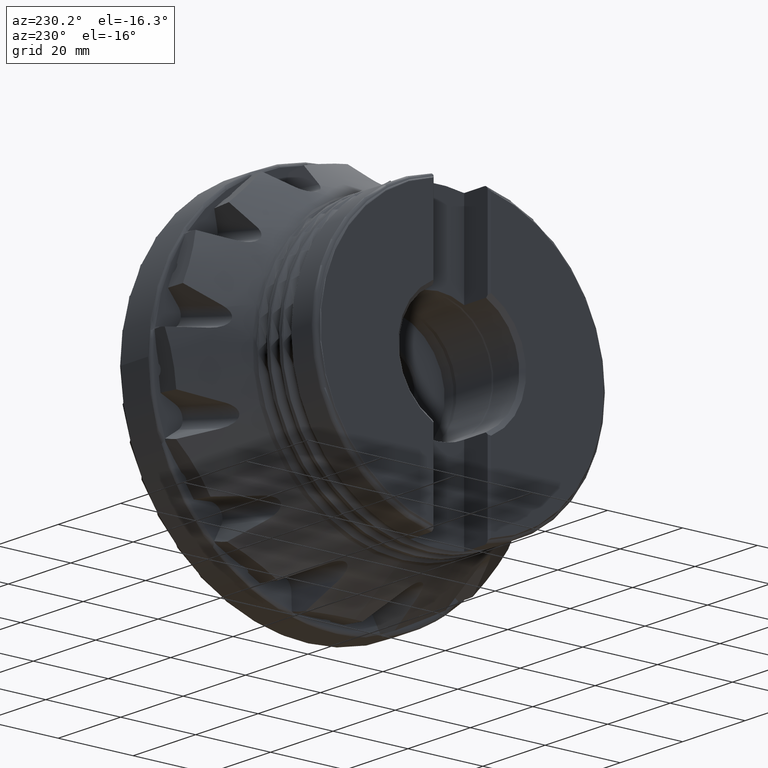
[diagram: clean part render]
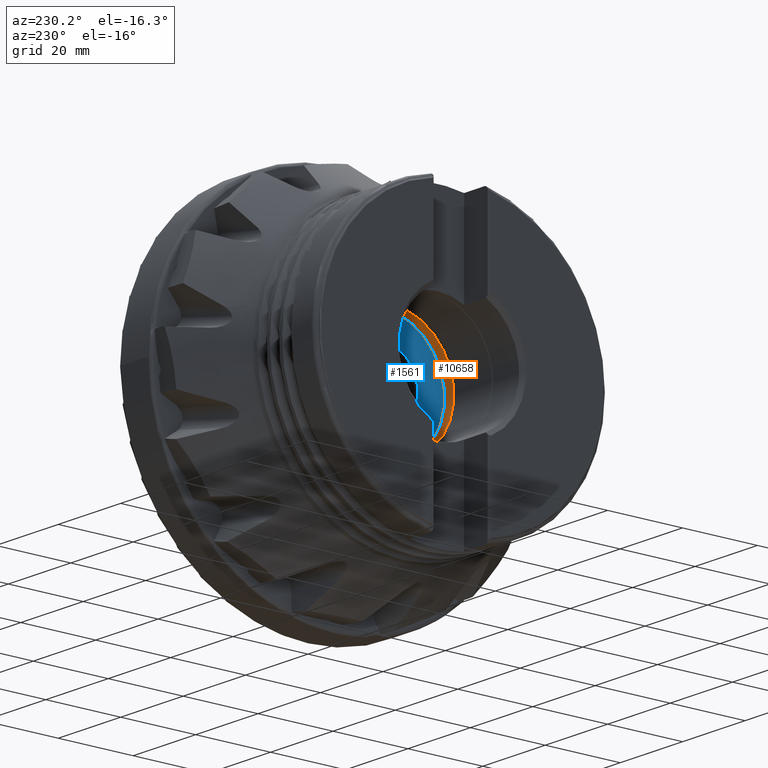
[diagram: same view with the hole feature highlighted: cylindrical wall and planar end face, labeled with their STEP entity ids]
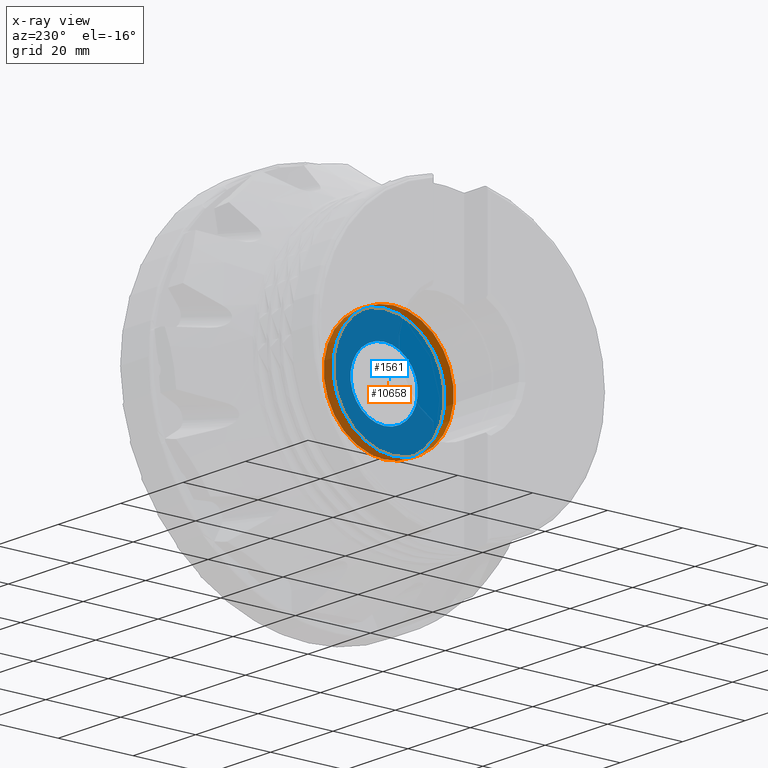
[diagram: x-ray of the same camera — body ghosted, the hole faces saturated]
A machine part, auxiliary view. The highlighted faces form one hole feature of diameter 32.3 mm: the cylindrical wall (entity #10658, orange) and its adjacent planar end face (entity #1561, blue) — they share a circular edge in the B-rep.
The next image is the same camera in x-ray (body ghosted, the hole faces saturated) — the bore reads through the body.
Wall:
#68 = CIRCLE ( 'NONE', #71, 16.14999999999999500 ) ;
#71 = AXIS2_PLACEMENT_3D ( 'NONE', #3104, #10061, #4086 ) ;
#942 = DIRECTION ( 'NONE',  ( 0.0000000000000000000, 0.0000000000000000000, -1.000000000000000000 ) ) ;
#1599 = CARTESIAN_POINT ( 'NONE',  ( -24.39999999999999900, 0.0000000000000000000, -16.14999999999999500 ) ) ;
#2506 = AXIS2_PLACEMENT_3D ( 'NONE', #8471, #2516, #9477 ) ;
#2516 = DIRECTION ( 'NONE',  ( 1.000000000000000000, -0.0000000000000000000, -0.0000000000000000000 ) ) ;
#3104 = CARTESIAN_POINT ( 'NONE',  ( -24.39999999999999900, 0.0000000000000000000, 0.0000000000000000000 ) ) ;
#3556 = CARTESIAN_POINT ( 'NONE',  ( -27.33269454164238600, 0.0000000000000000000, -16.14999999999999500 ) ) ;
#3692 = ORIENTED_EDGE ( 'NONE', *, *, #12745, .T. ) ;
#3784 = FACE_OUTER_BOUND ( 'NONE', #11153, .T. ) ;
#4086 = DIRECTION ( 'NONE',  ( 0.0000000000000000000, 0.0000000000000000000, -1.000000000000000000 ) ) ;
#4899 = CIRCLE ( 'NONE', #2506, 16.14999999999999500 ) ;
#6040 = AXIS2_PLACEMENT_3D ( 'NONE', #7903, #9886, #942 ) ;
#6421 = VERTEX_POINT ( 'NONE', #3556 ) ;
#7903 = CARTESIAN_POINT ( 'NONE',  ( 0.0000000000000000000, 0.0000000000000000000, 0.0000000000000000000 ) ) ;
#8254 = EDGE_LOOP ( 'NONE', ( #3692 ) ) ;
#8471 = CARTESIAN_POINT ( 'NONE',  ( -27.33269454164238600, 0.0000000000000000000, 0.0000000000000000000 ) ) ;
#8483 = VERTEX_POINT ( 'NONE', #1599 ) ;
#8792 = CYLINDRICAL_SURFACE ( 'NONE', #6040, 16.14999999999999500 ) ;
#9107 = FACE_OUTER_BOUND ( 'NONE', #8254, .T. ) ;
#9477 = DIRECTION ( 'NONE',  ( 0.0000000000000000000, 0.0000000000000000000, -1.000000000000000000 ) ) ;
#9886 = DIRECTION ( 'NONE',  ( 1.000000000000000000, -0.0000000000000000000, -0.0000000000000000000 ) ) ;
#10061 = DIRECTION ( 'NONE',  ( 1.000000000000000000, -0.0000000000000000000, -0.0000000000000000000 ) ) ;
#10658 = ADVANCED_FACE ( 'NONE', ( #3784, #9107 ), #8792, .F. ) ;
#10940 = EDGE_CURVE ( 'NONE', #6421, #6421, #4899, .T. ) ;
#11153 = EDGE_LOOP ( 'NONE', ( #12390 ) ) ;
#12390 = ORIENTED_EDGE ( 'NONE', *, *, #10940, .F. ) ;
#12745 = EDGE_CURVE ( 'NONE', #8483, #8483, #68, .T. ) ;
End face:
#68 = CIRCLE ( 'NONE', #71, 16.14999999999999500 ) ;
#71 = AXIS2_PLACEMENT_3D ( 'NONE', #3104, #10061, #4086 ) ;
#1452 = CIRCLE ( 'NONE', #3332, 8.999999999999980500 ) ;
#1561 = ADVANCED_FACE ( 'NONE', ( #9877, #8962 ), #10324, .F. ) ;
#1599 = CARTESIAN_POINT ( 'NONE',  ( -24.39999999999999900, 0.0000000000000000000, -16.14999999999999500 ) ) ;
#2236 = EDGE_CURVE ( 'NONE', #9862, #9862, #1452, .T. ) ;
#2375 = CARTESIAN_POINT ( 'NONE',  ( -24.39999999999999900, 8.499999999999996400, 0.0000000000000000000 ) ) ;
#3104 = CARTESIAN_POINT ( 'NONE',  ( -24.39999999999999900, 0.0000000000000000000, 0.0000000000000000000 ) ) ;
#3332 = AXIS2_PLACEMENT_3D ( 'NONE', #9950, #3959, #10942 ) ;
#3959 = DIRECTION ( 'NONE',  ( 1.000000000000000000, -0.0000000000000000000, -0.0000000000000000000 ) ) ;
#4086 = DIRECTION ( 'NONE',  ( 0.0000000000000000000, 0.0000000000000000000, -1.000000000000000000 ) ) ;
#4358 = DIRECTION ( 'NONE',  ( 1.000000000000000000, 0.0000000000000000000, -0.0000000000000000000 ) ) ;
#5972 = ORIENTED_EDGE ( 'NONE', *, *, #12745, .F. ) ;
#7625 = ORIENTED_EDGE ( 'NONE', *, *, #2236, .T. ) ;
#8336 = CARTESIAN_POINT ( 'NONE',  ( -24.39999999999999900, 0.0000000000000000000, -8.999999999999980500 ) ) ;
#8483 = VERTEX_POINT ( 'NONE', #1599 ) ;
#8962 = FACE_OUTER_BOUND ( 'NONE', #11756, .T. ) ;
#9609 = AXIS2_PLACEMENT_3D ( 'NONE', #2375, #4358, #11320 ) ;
#9630 = EDGE_LOOP ( 'NONE', ( #7625 ) ) ;
#9862 = VERTEX_POINT ( 'NONE', #8336 ) ;
#9877 = FACE_BOUND ( 'NONE', #9630, .T. ) ;
#9950 = CARTESIAN_POINT ( 'NONE',  ( -24.39999999999999900, 0.0000000000000000000, 0.0000000000000000000 ) ) ;
#10061 = DIRECTION ( 'NONE',  ( 1.000000000000000000, -0.0000000000000000000, -0.0000000000000000000 ) ) ;
#10324 = PLANE ( 'NONE',  #9609 ) ;
#10942 = DIRECTION ( 'NONE',  ( 0.0000000000000000000, 0.0000000000000000000, -1.000000000000000000 ) ) ;
#11320 = DIRECTION ( 'NONE',  ( -0.0000000000000000000, 0.0000000000000000000, -1.000000000000000000 ) ) ;
#11756 = EDGE_LOOP ( 'NONE', ( #5972 ) ) ;
#12745 = EDGE_CURVE ( 'NONE', #8483, #8483, #68, .T. ) ;